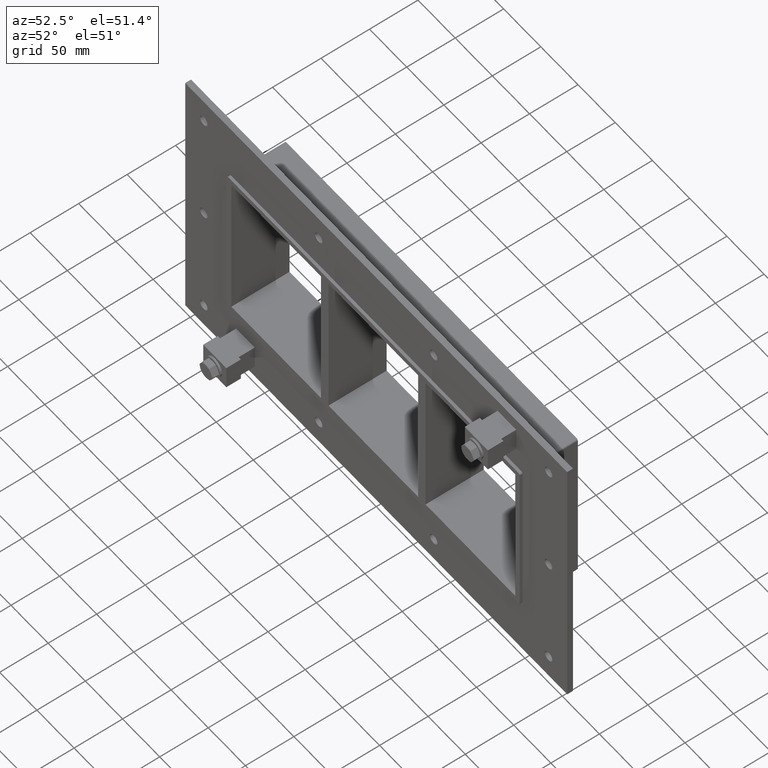
[diagram: clean part render]
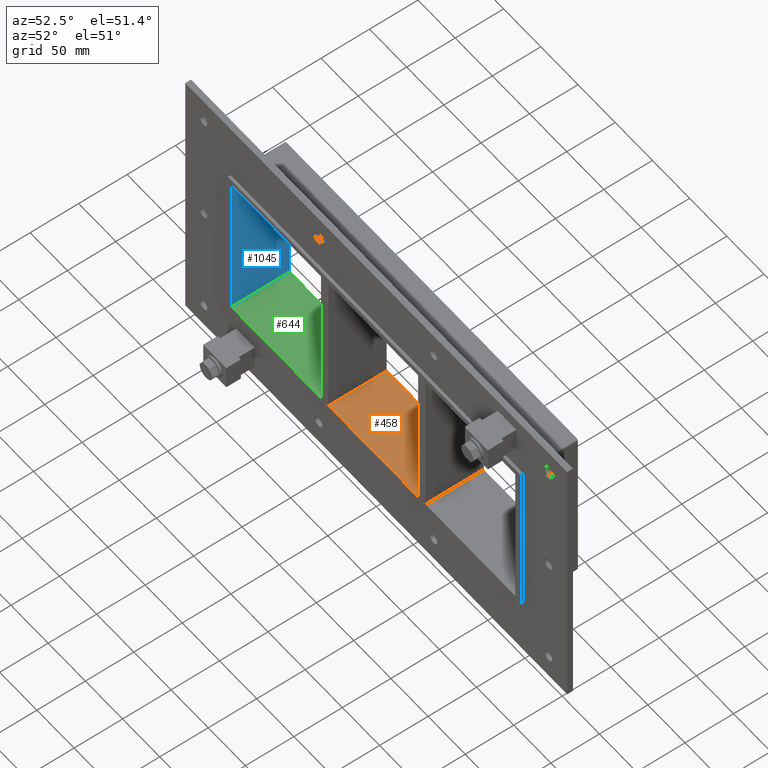
[diagram: same view with three faces highlighted in distinct colors, each labeled with its STEP entity id]
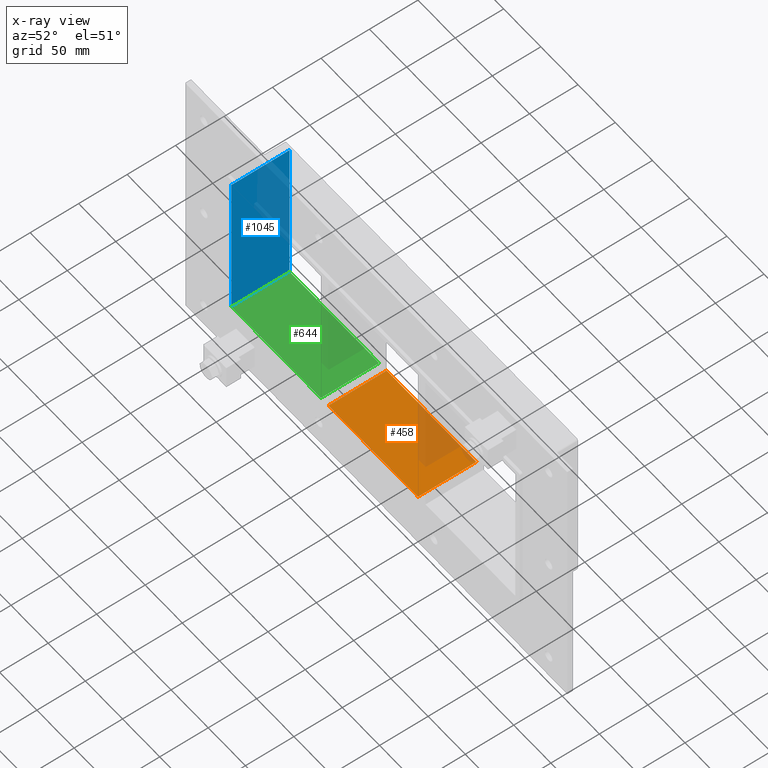
[diagram: x-ray of the same camera — body ghosted, the three highlighted faces saturated]
A machine part, auxiliary view with three faces highlighted in distinct colors.
The next image is the same camera in x-ray (body ghosted, the three faces saturated) — at least one of them is partly hidden behind the body in this view.
Their STEP definitions:

[orange] entity #458 — the highlighted planar face has unit normal (0, 0, -1).
#353=CARTESIAN_POINT('',(60.249999999999595,-3.0,-79.750000000000014));
#354=VERTEX_POINT('',#353);
#371=CARTESIAN_POINT('',(60.249999999999595,57.0,-79.750000000000014));
#372=VERTEX_POINT('',#371);
#379=CARTESIAN_POINT('',(60.249999999999595,-3.0,-79.750000000000014));
#380=DIRECTION('',(0.0,1.0,0.0));
#381=VECTOR('',#380,60.000000000000007);
#382=LINE('',#379,#381);
#383=EDGE_CURVE('',#354,#372,#382,.T.);
#428=CARTESIAN_POINT('',(190.75000000000003,0.0,-79.750000000000014));
#429=DIRECTION('',(0.0,0.0,-1.0));
#430=DIRECTION('',(-1.0,0.0,0.0));
#431=AXIS2_PLACEMENT_3D('',#428,#429,#430);
#432=PLANE('',#431);
#433=ORIENTED_EDGE('',*,*,#383,.T.);
#434=CARTESIAN_POINT('',(-60.249999999996362,57.0,-79.749999999981696));
#435=VERTEX_POINT('',#434);
#436=CARTESIAN_POINT('',(-60.249999999996362,57.0,-79.750000000000014));
#437=DIRECTION('',(1.0,0.0,0.0));
#438=VECTOR('',#437,120.49999999999596);
#439=LINE('',#436,#438);
#440=EDGE_CURVE('',#435,#372,#439,.T.);
#441=ORIENTED_EDGE('',*,*,#440,.F.);
#442=CARTESIAN_POINT('',(-60.249999999996362,-3.0,-79.749999999981696));
#443=VERTEX_POINT('',#442);
#444=CARTESIAN_POINT('',(-60.249999999996362,57.000000000000007,-79.750000000000014));
#445=DIRECTION('',(0.0,-1.0,0.0));
#446=VECTOR('',#445,60.000000000000007);
#447=LINE('',#444,#446);
#448=EDGE_CURVE('',#435,#443,#447,.T.);
#449=ORIENTED_EDGE('',*,*,#448,.T.);
#450=CARTESIAN_POINT('',(60.249999999999602,-3.0,-79.750000000000014));
#451=DIRECTION('',(-1.0,0.0,0.0));
#452=VECTOR('',#451,120.49999999999596);
#453=LINE('',#450,#452);
#454=EDGE_CURVE('',#354,#443,#453,.T.);
#455=ORIENTED_EDGE('',*,*,#454,.F.);
#456=EDGE_LOOP('',(#433,#441,#449,#455));
#457=FACE_OUTER_BOUND('',#456,.T.);
#458=ADVANCED_FACE('',(#457),#432,.F.);

[blue] entity #1045 — the highlighted planar face has unit normal (-1, 0, 0).
#620=CARTESIAN_POINT('',(-190.75000000000011,57.0,-79.750000000000014));
#621=VERTEX_POINT('',#620);
#628=CARTESIAN_POINT('',(-190.75000000000011,-3.0,-79.750000000000014));
#629=VERTEX_POINT('',#628);
#630=CARTESIAN_POINT('',(-190.75000000000011,-3.0,-79.750000000000014));
#631=DIRECTION('',(0.0,1.0,0.0));
#632=VECTOR('',#631,60.0);
#633=LINE('',#630,#632);
#634=EDGE_CURVE('',#629,#621,#633,.T.);
#651=CARTESIAN_POINT('',(-190.75000000000011,-3.0,79.749999999999972));
#652=VERTEX_POINT('',#651);
#659=CARTESIAN_POINT('',(-190.75000000000011,57.0,79.749999999999972));
#660=VERTEX_POINT('',#659);
#661=CARTESIAN_POINT('',(-190.75000000000011,-3.0,79.749999999999972));
#662=DIRECTION('',(0.0,1.0,0.0));
#663=VECTOR('',#662,60.0);
#664=LINE('',#661,#663);
#665=EDGE_CURVE('',#652,#660,#664,.T.);
#1024=CARTESIAN_POINT('',(-190.75000000000011,0.0,-79.750000000000014));
#1025=DIRECTION('',(-1.0,0.0,0.0));
#1026=DIRECTION('',(0.0,0.0,1.0));
#1027=AXIS2_PLACEMENT_3D('',#1024,#1025,#1026);
#1028=PLANE('',#1027);
#1029=ORIENTED_EDGE('',*,*,#634,.T.);
#1030=CARTESIAN_POINT('',(-190.75000000000011,57.0,79.749999999999972));
#1031=DIRECTION('',(0.0,0.0,-1.0));
#1032=VECTOR('',#1031,159.5);
#1033=LINE('',#1030,#1032);
#1034=EDGE_CURVE('',#660,#621,#1033,.T.);
#1035=ORIENTED_EDGE('',*,*,#1034,.F.);
#1036=ORIENTED_EDGE('',*,*,#665,.F.);
#1037=CARTESIAN_POINT('',(-190.75000000000011,-3.0,-79.750000000000014));
#1038=DIRECTION('',(0.0,0.0,1.0));
#1039=VECTOR('',#1038,159.5);
#1040=LINE('',#1037,#1039);
#1041=EDGE_CURVE('',#629,#652,#1040,.T.);
#1042=ORIENTED_EDGE('',*,*,#1041,.F.);
#1043=EDGE_LOOP('',(#1029,#1035,#1036,#1042));
#1044=FACE_OUTER_BOUND('',#1043,.T.);
#1045=ADVANCED_FACE('',(#1044),#1028,.F.);

[green] entity #644 — the highlighted planar face has unit normal (0, 0, -1).
#557=CARTESIAN_POINT('',(-70.250000000000412,-3.0,-79.750000000000014));
#558=VERTEX_POINT('',#557);
#575=CARTESIAN_POINT('',(-70.250000000000412,57.0,-79.750000000000014));
#576=VERTEX_POINT('',#575);
#583=CARTESIAN_POINT('',(-70.250000000000412,-3.0,-79.750000000000014));
#584=DIRECTION('',(0.0,1.0,0.0));
#585=VECTOR('',#584,60.000000000000007);
#586=LINE('',#583,#585);
#587=EDGE_CURVE('',#558,#576,#586,.T.);
#614=CARTESIAN_POINT('',(190.75000000000003,0.0,-79.750000000000014));
#615=DIRECTION('',(0.0,0.0,-1.0));
#616=DIRECTION('',(-1.0,0.0,0.0));
#617=AXIS2_PLACEMENT_3D('',#614,#615,#616);
#618=PLANE('',#617);
#619=ORIENTED_EDGE('',*,*,#587,.T.);
#620=CARTESIAN_POINT('',(-190.75000000000011,57.0,-79.750000000000014));
#621=VERTEX_POINT('',#620);
#622=CARTESIAN_POINT('',(-190.75000000000011,57.0,-79.750000000000014));
#623=DIRECTION('',(1.0,0.0,0.0));
#624=VECTOR('',#623,120.49999999999969);
#625=LINE('',#622,#624);
#626=EDGE_CURVE('',#621,#576,#625,.T.);
#627=ORIENTED_EDGE('',*,*,#626,.F.);
#628=CARTESIAN_POINT('',(-190.75000000000011,-3.0,-79.750000000000014));
#629=VERTEX_POINT('',#628);
#630=CARTESIAN_POINT('',(-190.75000000000011,-3.0,-79.750000000000014));
#631=DIRECTION('',(0.0,1.0,0.0));
#632=VECTOR('',#631,60.0);
#633=LINE('',#630,#632);
#634=EDGE_CURVE('',#629,#621,#633,.T.);
#635=ORIENTED_EDGE('',*,*,#634,.F.);
#636=CARTESIAN_POINT('',(-70.250000000000426,-3.0,-79.750000000000014));
#637=DIRECTION('',(-1.0,0.0,0.0));
#638=VECTOR('',#637,120.49999999999969);
#639=LINE('',#636,#638);
#640=EDGE_CURVE('',#558,#629,#639,.T.);
#641=ORIENTED_EDGE('',*,*,#640,.F.);
#642=EDGE_LOOP('',(#619,#627,#635,#641));
#643=FACE_OUTER_BOUND('',#642,.T.);
#644=ADVANCED_FACE('',(#643),#618,.F.);